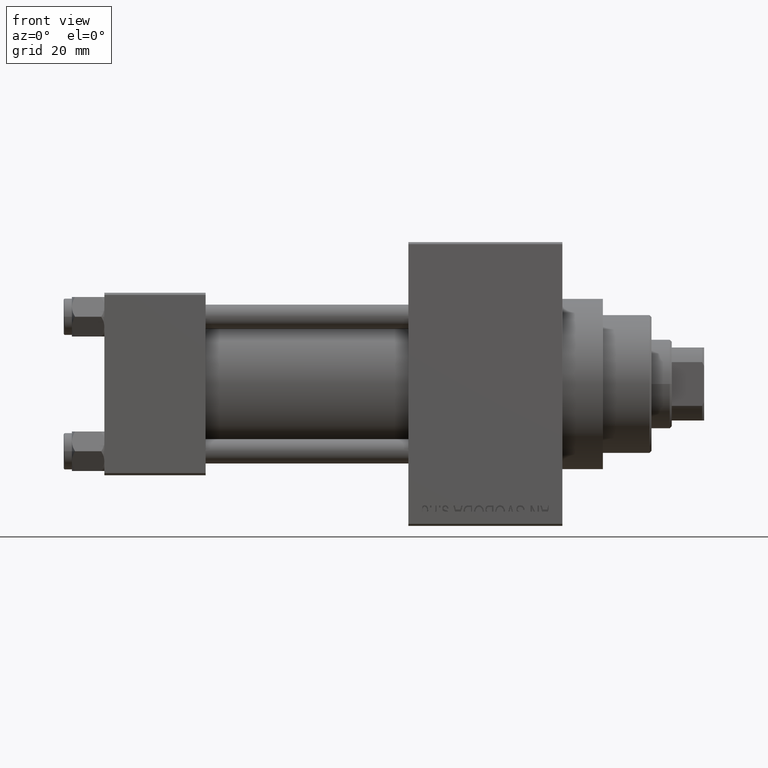
[diagram: clean part render]
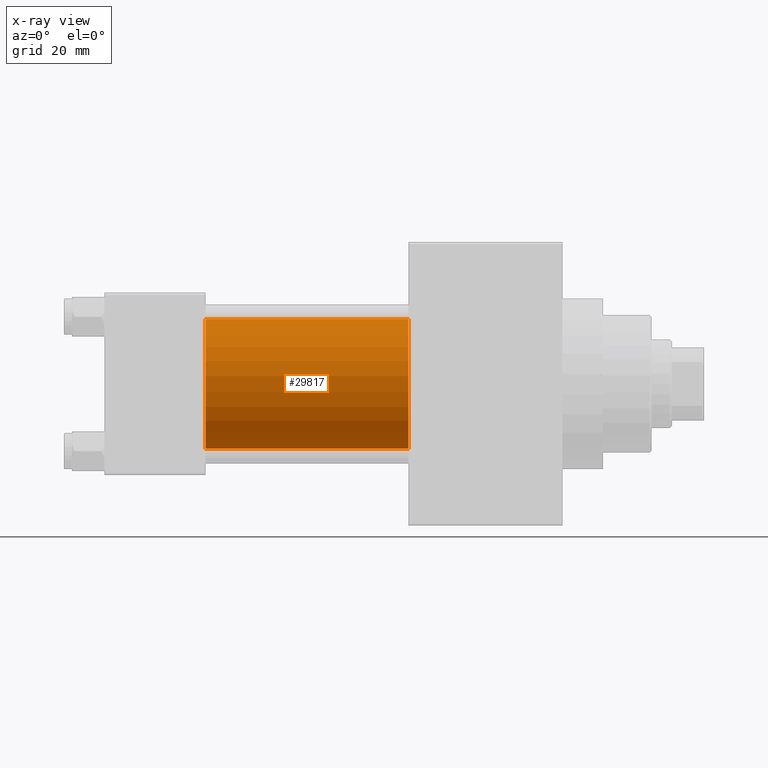
[diagram: x-ray — body ghosted, one internal face saturated and labeled with its STEP entity id]
A machine part, front view, then the same camera in x-ray: the body is ghosted and one INTERNAL B-rep face — a face not visible from any outside direction — is saturated and labeled: STEP entity #29817.
In plain terms, the highlighted cylindrical surface (partial cylindrical patch) has radius 16 mm, axis along (-1, -0, -0).
Its self-contained STEP definition (entity closure, byte-faithful):
#5151 = ORIENTED_EDGE ( 'NONE', *, *, #17936, .F. ) ;
#5251 = VERTEX_POINT ( 'NONE', #15287 ) ;
#5533 = ORIENTED_EDGE ( 'NONE', *, *, #35660, .F. ) ;
#5672 = CARTESIAN_POINT ( 'NONE',  ( 75.00000000000001421, -2.602085213965210642E-15, 0.000000000000000000 ) ) ;
#8621 = AXIS2_PLACEMENT_3D ( 'NONE', #5672, #12359, #46689 ) ;
#12359 = DIRECTION ( 'NONE',  ( -1.000000000000000000, -0.000000000000000000, -0.000000000000000000 ) ) ;
#12452 = ORIENTED_EDGE ( 'NONE', *, *, #14587, .T. ) ;
#12609 = DIRECTION ( 'NONE',  ( 0.000000000000000000, 0.000000000000000000, -1.000000000000000000 ) ) ;
#13373 = CARTESIAN_POINT ( 'NONE',  ( 75.00000000000001421, -6.426503353294456087E-16, -16.00000000000000000 ) ) ;
#13511 = LINE ( 'NONE', #13993, #32542 ) ;
#13993 = CARTESIAN_POINT ( 'NONE',  ( 75.00000000000001421, -2.602085213965210642E-15, 16.00000000000000000 ) ) ;
#14587 = EDGE_CURVE ( 'NONE', #5251, #36543, #33387, .T. ) ;
#15287 = CARTESIAN_POINT ( 'NONE',  ( 75.00000000000001421, -6.426503353294456087E-16, -16.00000000000000000 ) ) ;
#15322 = DIRECTION ( 'NONE',  ( -1.000000000000000000, -0.000000000000000000, -0.000000000000000000 ) ) ;
#15536 = DIRECTION ( 'NONE',  ( 0.000000000000000000, 0.000000000000000000, -1.000000000000000000 ) ) ;
#16701 = CARTESIAN_POINT ( 'NONE',  ( 75.00000000000001421, -2.602085213965210642E-15, 16.00000000000000000 ) ) ;
#17936 = EDGE_CURVE ( 'NONE', #32460, #35778, #13511, .T. ) ;
#21898 = DIRECTION ( 'NONE',  ( -1.000000000000000000, -0.000000000000000000, -0.000000000000000000 ) ) ;
#24413 = EDGE_CURVE ( 'NONE', #32460, #5251, #28669, .T. ) ;
#24445 = CYLINDRICAL_SURFACE ( 'NONE', #8621, 16.00000000000000000 ) ;
#27854 = CARTESIAN_POINT ( 'NONE',  ( 25.00000000000000000, -2.602085213965210642E-15, 16.00000000000000000 ) ) ;
#28669 = CIRCLE ( 'NONE', #33435, 16.00000000000000000 ) ;
#29231 = AXIS2_PLACEMENT_3D ( 'NONE', #46177, #30847, #15536 ) ;
#29448 = EDGE_LOOP ( 'NONE', ( #31777, #12452, #5533, #5151 ) ) ;
#29817 = ADVANCED_FACE ( 'NONE', ( #37583 ), #24445, .F. ) ;
#30847 = DIRECTION ( 'NONE',  ( 1.000000000000000000, 0.000000000000000000, 0.000000000000000000 ) ) ;
#31777 = ORIENTED_EDGE ( 'NONE', *, *, #24413, .T. ) ;
#32460 = VERTEX_POINT ( 'NONE', #16701 ) ;
#32542 = VECTOR ( 'NONE', #21898, 1000.000000000000000 ) ;
#33387 = LINE ( 'NONE', #13373, #43479 ) ;
#33435 = AXIS2_PLACEMENT_3D ( 'NONE', #35094, #46449, #12609 ) ;
#35094 = CARTESIAN_POINT ( 'NONE',  ( 75.00000000000001421, -2.602085213965210642E-15, 0.000000000000000000 ) ) ;
#35660 = EDGE_CURVE ( 'NONE', #35778, #36543, #37156, .T. ) ;
#35778 = VERTEX_POINT ( 'NONE', #27854 ) ;
#36543 = VERTEX_POINT ( 'NONE', #40716 ) ;
#37156 = CIRCLE ( 'NONE', #29231, 16.00000000000000000 ) ;
#37583 = FACE_OUTER_BOUND ( 'NONE', #29448, .T. ) ;
#40716 = CARTESIAN_POINT ( 'NONE',  ( 25.00000000000000000, -6.426503353294456087E-16, -16.00000000000000000 ) ) ;
#43479 = VECTOR ( 'NONE', #15322, 1000.000000000000000 ) ;
#46177 = CARTESIAN_POINT ( 'NONE',  ( 25.00000000000000000, -2.602085213965210642E-15, 0.000000000000000000 ) ) ;
#46449 = DIRECTION ( 'NONE',  ( 1.000000000000000000, 0.000000000000000000, 0.000000000000000000 ) ) ;
#46689 = DIRECTION ( 'NONE',  ( 0.000000000000000000, 0.000000000000000000, 1.000000000000000000 ) ) ;